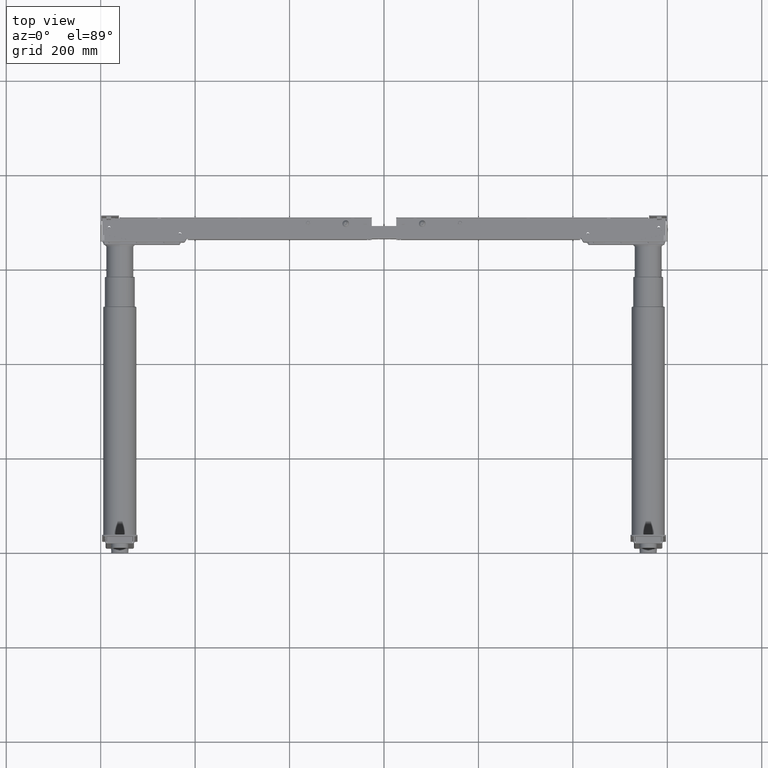
[diagram: clean part render]
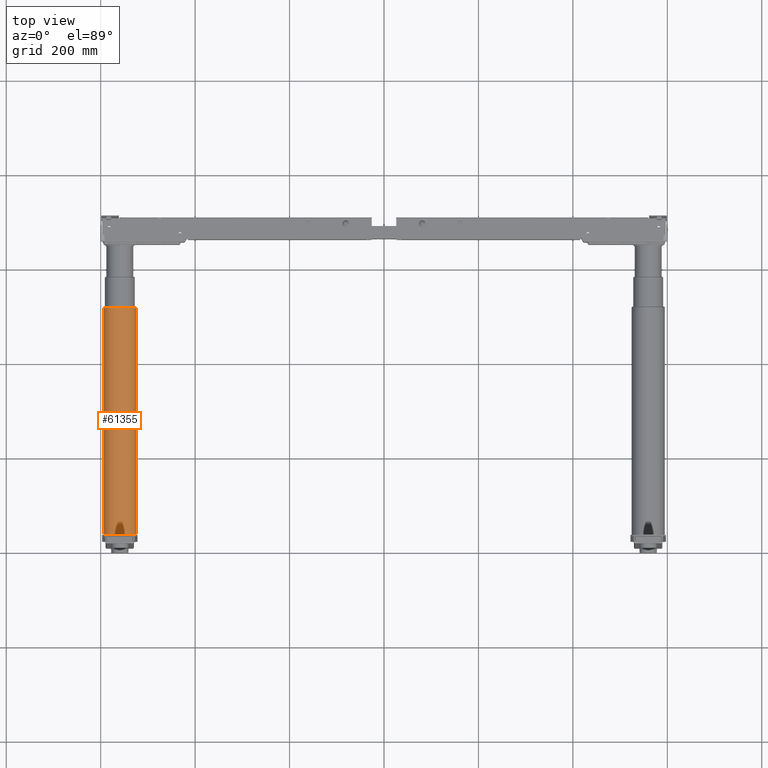
[diagram: same view with one face highlighted and labeled with its STEP entity id]
A machine part, top view. The second image highlights one B-rep face of the part: STEP entity #61355.
In plain terms, the highlighted cylindrical surface (edge-blend (fillet) strip) has radius 35 mm, axis along (-0, -1, -0).
Its self-contained STEP definition (entity closure, byte-faithful):
#2463 = CARTESIAN_POINT ( 'NONE',  ( -524.5000000000000000, 27.09999999999788045, 1.274977819952109655E-13 ) ) ;
#3546 = DIRECTION ( 'NONE',  ( -1.110223024625156540E-16, -1.000000000000000000, -1.494570229292720333E-16 ) ) ;
#8898 = EDGE_CURVE ( 'NONE', #22473, #12988, #31280, .T. ) ;
#10788 = ORIENTED_EDGE ( 'NONE', *, *, #39146, .F. ) ;
#11253 = DIRECTION ( 'NONE',  ( 1.110223024625156540E-16, 1.000000000000000000, 1.494570229292720333E-16 ) ) ;
#12988 = VERTEX_POINT ( 'NONE', #96819 ) ;
#21616 = EDGE_LOOP ( 'NONE', ( #33876, #84424, #54305, #10788 ) ) ;
#22473 = VERTEX_POINT ( 'NONE', #46096 ) ;
#28822 = AXIS2_PLACEMENT_3D ( 'NONE', #76913, #68065, #52515 ) ;
#30599 = CARTESIAN_POINT ( 'NONE',  ( -559.5000000000000000, 27.09999999999788400, 9.110499691193323545E-14 ) ) ;
#31280 = LINE ( 'NONE', #90035, #97316 ) ;
#31556 = DIRECTION ( 'NONE',  ( -1.110223024625156540E-16, -1.000000000000000000, -1.494570229292720333E-16 ) ) ;
#33461 = DIRECTION ( 'NONE',  ( -1.110223024625156540E-16, -1.000000000000000000, -1.494570229292720333E-16 ) ) ;
#33876 = ORIENTED_EDGE ( 'NONE', *, *, #42309, .F. ) ;
#39146 = EDGE_CURVE ( 'NONE', #67488, #48380, #95003, .T. ) ;
#42309 = EDGE_CURVE ( 'NONE', #22473, #67488, #104901, .T. ) ;
#46096 = CARTESIAN_POINT ( 'NONE',  ( -594.4999999999998863, 514.0999999999978627, 1.317840457922267462E-13 ) ) ;
#48380 = VERTEX_POINT ( 'NONE', #2463 ) ;
#52515 = DIRECTION ( 'NONE',  ( -1.000000000000000000, 0.000000000000000000, 0.000000000000000000 ) ) ;
#54305 = ORIENTED_EDGE ( 'NONE', *, *, #55314, .T. ) ;
#55314 = EDGE_CURVE ( 'NONE', #12988, #48380, #62706, .T. ) ;
#57711 = VECTOR ( 'NONE', #3546, 1000.000000000000000 ) ;
#61355 = ADVANCED_FACE ( 'NONE', ( #82535 ), #107462, .T. ) ;
#62706 = CIRCLE ( 'NONE', #64549, 35.00000000000002842 ) ;
#63037 = AXIS2_PLACEMENT_3D ( 'NONE', #90841, #31556, #99165 ) ;
#64549 = AXIS2_PLACEMENT_3D ( 'NONE', #30599, #11253, #87148 ) ;
#67488 = VERTEX_POINT ( 'NONE', #99492 ) ;
#68065 = DIRECTION ( 'NONE',  ( 1.110223024625156540E-16, 1.000000000000000000, 1.494570229292720333E-16 ) ) ;
#76913 = CARTESIAN_POINT ( 'NONE',  ( -559.4999999999998863, 514.0999999999978627, 1.638905670784887334E-13 ) ) ;
#82535 = FACE_OUTER_BOUND ( 'NONE', #21616, .T. ) ;
#84424 = ORIENTED_EDGE ( 'NONE', *, *, #8898, .T. ) ;
#87148 = DIRECTION ( 'NONE',  ( -1.000000000000000000, 9.912705577010318154E-17, 0.000000000000000000 ) ) ;
#90035 = CARTESIAN_POINT ( 'NONE',  ( -594.4999999999998863, 514.0999999999978627, 1.681768308755044636E-13 ) ) ;
#90841 = CARTESIAN_POINT ( 'NONE',  ( -559.4999999999998863, 514.0999999999978627, 1.638905670784887334E-13 ) ) ;
#95003 = LINE ( 'NONE', #105471, #57711 ) ;
#96819 = CARTESIAN_POINT ( 'NONE',  ( -594.5000000000000000, 27.09999999999788756, 1.317840457922268219E-13 ) ) ;
#97316 = VECTOR ( 'NONE', #33461, 1000.000000000000000 ) ;
#99165 = DIRECTION ( 'NONE',  ( 1.000000000000000000, 0.000000000000000000, 0.000000000000000000 ) ) ;
#99492 = CARTESIAN_POINT ( 'NONE',  ( -524.4999999999998863, 514.0999999999978627, 1.274977819952110160E-13 ) ) ;
#104901 = CIRCLE ( 'NONE', #28822, 35.00000000000002842 ) ;
#105471 = CARTESIAN_POINT ( 'NONE',  ( -524.4999999999998863, 514.0999999999978627, 1.638905670784887334E-13 ) ) ;
#107462 = CYLINDRICAL_SURFACE ( 'NONE', #63037, 35.00000000000002842 ) ;